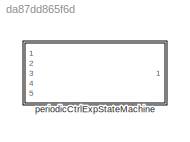
MODEL slx_da87dd865f6d
KIND library
CONFIG AbsTol = auto
CONFIG EnableMultiTasking = off
CONFIG FixedStep = auto
CONFIG MaxStep = auto
CONFIG MinStep = auto
CONFIG RelTol = 1e-3
CONFIG SampleTimeConstraint = Unconstrained
CONFIG SolverName = VariableStepAuto
CONFIG StartTime = 0.0
CONFIG StopTime = 10.0
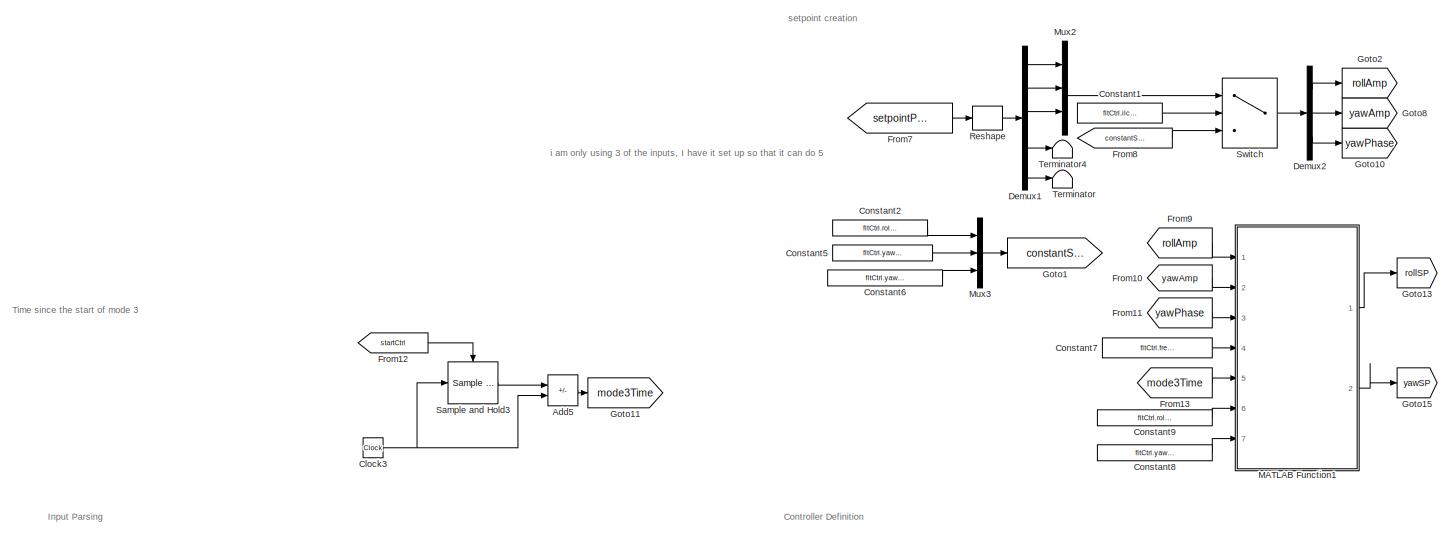
[diagram: periodicCtrlExpStateMachine - part 1/3, top left region]
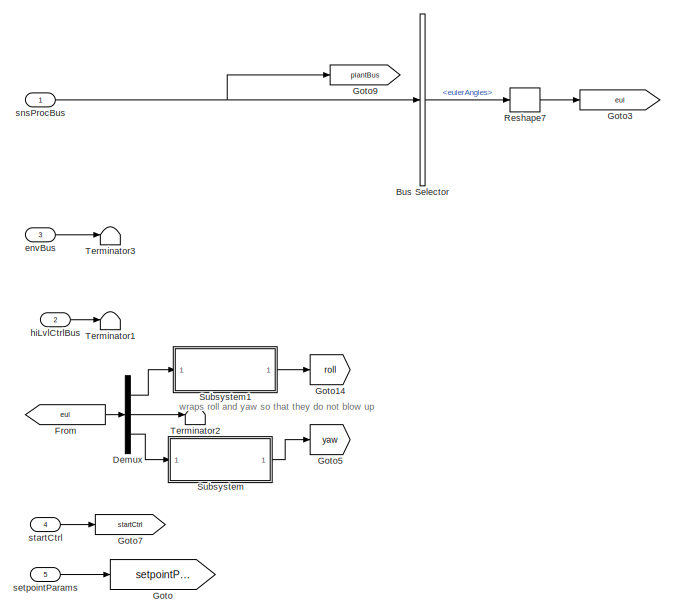
[diagram: periodicCtrlExpStateMachine - part 2/3, bottom left region]
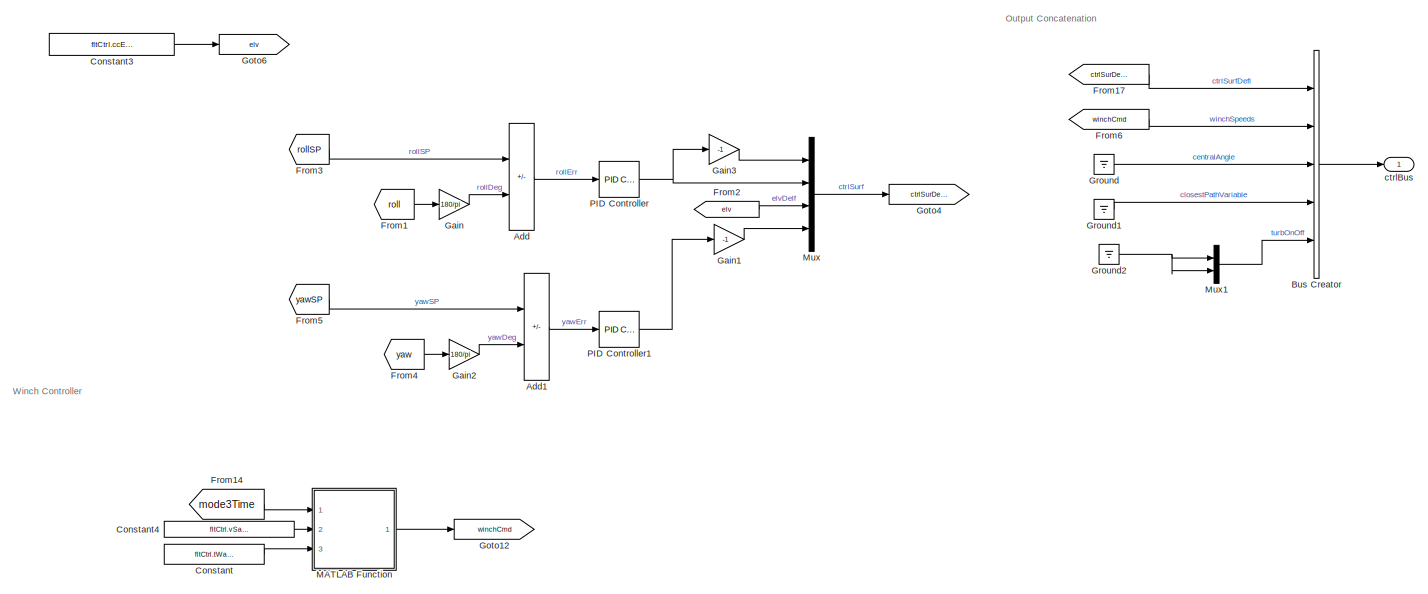
[diagram: periodicCtrlExpStateMachine - part 3/3, bottom right region]
BLOCK [SubSystem] periodicCtrlExpStateMachine
  InitFcn = initializeBussesFromBlock(gcb)
  LoadFcn = initializeBussesFromBlock(gcb)
  Ports = [5, 1]
  RequestExecContextInheritance = off
BLOCK [Sum] periodicCtrlExpStateMachine/Add
  IconShape = rectangular
  Inputs = +-
  Ports = [2, 1]
BLOCK [Sum] periodicCtrlExpStateMachine/Add1
  IconShape = rectangular
  Inputs = +-
  Ports = [2, 1]
BLOCK [Sum] periodicCtrlExpStateMachine/Add5
  IconShape = rectangular
  Inputs = -+
  Ports = [2, 1]
BLOCK [BusCreator] periodicCtrlExpStateMachine/Bus Creator
  DisplayOption = bar
  InheritFromInputs = off
  Inputs = 5
  OutDataTypeStr = Bus: fltCtrlBus
  Ports = [5, 1]
BLOCK [BusSelector] periodicCtrlExpStateMachine/Bus Selector
  OutputSignals = eulerAngles
  Ports = [1, 1]
BLOCK [Clock] periodicCtrlExpStateMachine/Clock3
BLOCK [Constant] periodicCtrlExpStateMachine/Constant
  Value = fltCtrl.tWait.Value
BLOCK [Constant] periodicCtrlExpStateMachine/Constant1
  Value = fltCtrl.ilcTrig.Value
BLOCK [Constant] periodicCtrlExpStateMachine/Constant2
  Value = fltCtrl.rollAmp.Value
BLOCK [Constant] periodicCtrlExpStateMachine/Constant3
  Value = fltCtrl.ccElevator.Value
BLOCK [Constant] periodicCtrlExpStateMachine/Constant4
  Value = fltCtrl.vSat.Value
BLOCK [Constant] periodicCtrlExpStateMachine/Constant5
  Value = fltCtrl.yawAmp.Value
BLOCK [Constant] periodicCtrlExpStateMachine/Constant6
  Value = fltCtrl.yawPhase.Value
BLOCK [Constant] periodicCtrlExpStateMachine/Constant7
  Value = fltCtrl.frequency.Value
BLOCK [Constant] periodicCtrlExpStateMachine/Constant8
  Value = fltCtrl.yawBias.Value
BLOCK [Constant] periodicCtrlExpStateMachine/Constant9
  Value = fltCtrl.rollBias.Value
BLOCK [Demux] periodicCtrlExpStateMachine/Demux
  Outputs = 3
  Ports = [1, 3]
BLOCK [Demux] periodicCtrlExpStateMachine/Demux1
  Outputs = 5
  Ports = [1, 5]
BLOCK [Demux] periodicCtrlExpStateMachine/Demux2
  Outputs = 3
  Ports = [1, 3]
BLOCK [From] periodicCtrlExpStateMachine/From
  GotoTag = eul
BLOCK [From] periodicCtrlExpStateMachine/From1
  GotoTag = roll
BLOCK [From] periodicCtrlExpStateMachine/From10
  GotoTag = yawAmp
BLOCK [From] periodicCtrlExpStateMachine/From11
  GotoTag = yawPhase
BLOCK [From] periodicCtrlExpStateMachine/From12
  GotoTag = startCtrl
BLOCK [From] periodicCtrlExpStateMachine/From13
  GotoTag = mode3Time
BLOCK [From] periodicCtrlExpStateMachine/From14
  GotoTag = mode3Time
BLOCK [From] periodicCtrlExpStateMachine/From17
  GotoTag = ctrlSurDefl
BLOCK [From] periodicCtrlExpStateMachine/From2
  GotoTag = elv
BLOCK [From] periodicCtrlExpStateMachine/From3
  GotoTag = rollSP
BLOCK [From] periodicCtrlExpStateMachine/From4
  GotoTag = yaw
BLOCK [From] periodicCtrlExpStateMachine/From5
  GotoTag = yawSP
BLOCK [From] periodicCtrlExpStateMachine/From6
  GotoTag = winchCmd
BLOCK [From] periodicCtrlExpStateMachine/From7
  GotoTag = setpointParams
BLOCK [From] periodicCtrlExpStateMachine/From8
  GotoTag = constantSetpoints
BLOCK [From] periodicCtrlExpStateMachine/From9
  GotoTag = rollAmp
BLOCK [Gain] periodicCtrlExpStateMachine/Gain
  Gain = 180/pi
BLOCK [Gain] periodicCtrlExpStateMachine/Gain1
  Gain = -1
BLOCK [Gain] periodicCtrlExpStateMachine/Gain2
  Gain = 180/pi
BLOCK [Gain] periodicCtrlExpStateMachine/Gain3
  Gain = -1
BLOCK [Goto] periodicCtrlExpStateMachine/Goto
  GotoTag = setpointParams
BLOCK [Goto] periodicCtrlExpStateMachine/Goto1
  GotoTag = constantSetpoints
BLOCK [Goto] periodicCtrlExpStateMachine/Goto10
  GotoTag = yawPhase
BLOCK [Goto] periodicCtrlExpStateMachine/Goto11
  GotoTag = mode3Time
BLOCK [Goto] periodicCtrlExpStateMachine/Goto12
  GotoTag = winchCmd
BLOCK [Goto] periodicCtrlExpStateMachine/Goto13
  GotoTag = rollSP
BLOCK [Goto] periodicCtrlExpStateMachine/Goto14
  GotoTag = roll
BLOCK [Goto] periodicCtrlExpStateMachine/Goto15
  GotoTag = yawSP
BLOCK [Goto] periodicCtrlExpStateMachine/Goto2
  GotoTag = rollAmp
BLOCK [Goto] periodicCtrlExpStateMachine/Goto3
  GotoTag = eul
BLOCK [Goto] periodicCtrlExpStateMachine/Goto4
  GotoTag = ctrlSurDefl
BLOCK [Goto] periodicCtrlExpStateMachine/Goto5
  GotoTag = yaw
BLOCK [Goto] periodicCtrlExpStateMachine/Goto6
  GotoTag = elv
BLOCK [Goto] periodicCtrlExpStateMachine/Goto7
  GotoTag = startCtrl
BLOCK [Goto] periodicCtrlExpStateMachine/Goto8
  GotoTag = yawAmp
BLOCK [Goto] periodicCtrlExpStateMachine/Goto9
  GotoTag = plantBus
BLOCK [Ground] periodicCtrlExpStateMachine/Ground
BLOCK [Ground] periodicCtrlExpStateMachine/Ground1
BLOCK [Ground] periodicCtrlExpStateMachine/Ground2
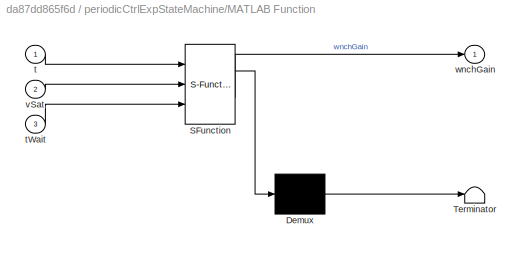
BLOCK [SubSystem] periodicCtrlExpStateMachine/MATLAB Function
  ErrorFcn = Stateflow.Translate.translate
  PermitHierarchicalResolution = ExplicitOnly
  Ports = [3, 1]
  RequestExecContextInheritance = off
  SFBlockType = MATLAB Function
  TreatAsAtomicUnit = on
BLOCK [Demux] periodicCtrlExpStateMachine/MATLAB Function/ Demux 
  Outputs = 1
  Ports = [1, 1]
BLOCK [S-Function] periodicCtrlExpStateMachine/MATLAB Function/ SFunction 
  EnableBusSupport = off
  FunctionName = sf_sfun
  PortCounts = [3 2]
  Ports = [3, 2]
  SFcnIsStateOwnerBlock = off
  SFunctionDeploymentMode = off
  Tag = Stateflow S-Function 25
BLOCK [Terminator] periodicCtrlExpStateMachine/MATLAB Function/ Terminator 
BLOCK [Inport] periodicCtrlExpStateMachine/MATLAB Function/t
BLOCK [Inport] periodicCtrlExpStateMachine/MATLAB Function/tWait
  Port = 3
BLOCK [Inport] periodicCtrlExpStateMachine/MATLAB Function/vSat
  Port = 2
BLOCK [Outport] periodicCtrlExpStateMachine/MATLAB Function/wnchGain
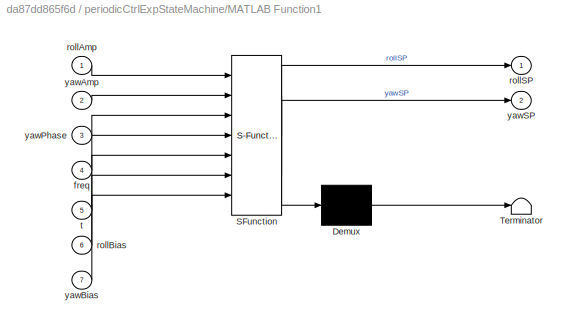
BLOCK [SubSystem] periodicCtrlExpStateMachine/MATLAB Function1
  ErrorFcn = Stateflow.Translate.translate
  PermitHierarchicalResolution = ExplicitOnly
  Ports = [7, 2]
  RequestExecContextInheritance = off
  SFBlockType = MATLAB Function
  TreatAsAtomicUnit = on
BLOCK [Demux] periodicCtrlExpStateMachine/MATLAB Function1/ Demux 
  Outputs = 1
  Ports = [1, 1]
BLOCK [S-Function] periodicCtrlExpStateMachine/MATLAB Function1/ SFunction 
  EnableBusSupport = off
  FunctionName = sf_sfun
  PortCounts = [7 3]
  Ports = [7, 3]
  SFcnIsStateOwnerBlock = off
  SFunctionDeploymentMode = off
  Tag = Stateflow S-Function 26
BLOCK [Terminator] periodicCtrlExpStateMachine/MATLAB Function1/ Terminator 
BLOCK [Inport] periodicCtrlExpStateMachine/MATLAB Function1/freq
  Port = 4
BLOCK [Inport] periodicCtrlExpStateMachine/MATLAB Function1/rollAmp
BLOCK [Inport] periodicCtrlExpStateMachine/MATLAB Function1/rollBias
  Port = 6
BLOCK [Outport] periodicCtrlExpStateMachine/MATLAB Function1/rollSP
BLOCK [Inport] periodicCtrlExpStateMachine/MATLAB Function1/t
  Port = 5
BLOCK [Inport] periodicCtrlExpStateMachine/MATLAB Function1/yawAmp
  Port = 2
BLOCK [Inport] periodicCtrlExpStateMachine/MATLAB Function1/yawBias
  Port = 7
BLOCK [Inport] periodicCtrlExpStateMachine/MATLAB Function1/yawPhase
  Port = 3
BLOCK [Outport] periodicCtrlExpStateMachine/MATLAB Function1/yawSP
  Port = 2
BLOCK [Mux] periodicCtrlExpStateMachine/Mux
  DisplayOption = bar
  Ports = [4, 1]
BLOCK [Mux] periodicCtrlExpStateMachine/Mux1
  DisplayOption = bar
  Inputs = 2
  Ports = [2, 1]
BLOCK [Mux] periodicCtrlExpStateMachine/Mux2
  DisplayOption = bar
  Inputs = 3
  Ports = [3, 1]
BLOCK [Mux] periodicCtrlExpStateMachine/Mux3
  DisplayOption = bar
  Inputs = 3
  Ports = [3, 1]
BLOCK [Reference] periodicCtrlExpStateMachine/PID Controller  REF=slpidlib/PID Controller
  Ports = [1, 1]
  SourceBlock = slpidlib/PID Controller
  SourceProductBaseCode = SL
  SourceType = PID 1dof
BLOCK [Reference] periodicCtrlExpStateMachine/PID Controller1  REF=slpidlib/PID Controller
  Ports = [1, 1]
  SourceBlock = slpidlib/PID Controller
  SourceProductBaseCode = SL
  SourceType = PID 1dof
BLOCK [Reshape] periodicCtrlExpStateMachine/Reshape
  OutputDimensionality = Column vector (2-D)
  Ports = [1, 1]
BLOCK [Reshape] periodicCtrlExpStateMachine/Reshape7
  OutputDimensionality = Column vector (2-D)
  Ports = [1, 1]
BLOCK [Reference] periodicCtrlExpStateMachine/Sample and Hold3  REF=dspsigops/Sample
and Hold
  Ports = [1, 1, 0, 1]
  SourceBlock = dspsigops/Sample\nand Hold
  SourceProductBaseCode = DS
  SourceType = Sample and Hold
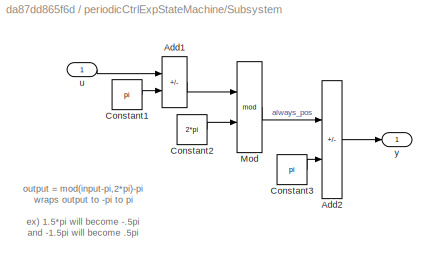
BLOCK [SubSystem] periodicCtrlExpStateMachine/Subsystem
  Ports = [1, 1]
  RequestExecContextInheritance = off
BLOCK [Sum] periodicCtrlExpStateMachine/Subsystem/Add1
  IconShape = rectangular
  Inputs = +-
  Ports = [2, 1]
BLOCK [Sum] periodicCtrlExpStateMachine/Subsystem/Add2
  IconShape = rectangular
  Inputs = +-
  Ports = [2, 1]
BLOCK [Constant] periodicCtrlExpStateMachine/Subsystem/Constant1
  Value = pi
BLOCK [Constant] periodicCtrlExpStateMachine/Subsystem/Constant2
  Value = 2*pi
BLOCK [Constant] periodicCtrlExpStateMachine/Subsystem/Constant3
  Value = pi
BLOCK [Math] periodicCtrlExpStateMachine/Subsystem/Mod
  Operator = mod
  Ports = [2, 1]
  SignedPower = on
BLOCK [Inport] periodicCtrlExpStateMachine/Subsystem/u
BLOCK [Outport] periodicCtrlExpStateMachine/Subsystem/y
  VectorParamsAs1DForOutWhenUnconnected = off
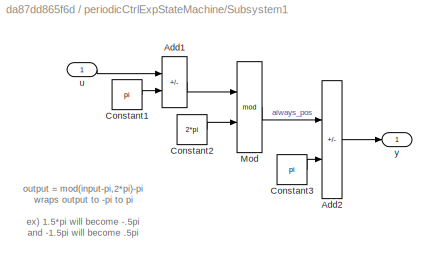
BLOCK [SubSystem] periodicCtrlExpStateMachine/Subsystem1
  AncestorBlock = periodicCtrlExpStateMachine/periodicCtrlExpStateMachine/Subsystem
  Ports = [1, 1]
  RequestExecContextInheritance = off
BLOCK [Sum] periodicCtrlExpStateMachine/Subsystem1/Add1
  IconShape = rectangular
  Inputs = +-
  Ports = [2, 1]
BLOCK [Sum] periodicCtrlExpStateMachine/Subsystem1/Add2
  IconShape = rectangular
  Inputs = +-
  Ports = [2, 1]
BLOCK [Constant] periodicCtrlExpStateMachine/Subsystem1/Constant1
  Value = pi
BLOCK [Constant] periodicCtrlExpStateMachine/Subsystem1/Constant2
  Value = 2*pi
BLOCK [Constant] periodicCtrlExpStateMachine/Subsystem1/Constant3
  Value = pi
BLOCK [Math] periodicCtrlExpStateMachine/Subsystem1/Mod
  Operator = mod
  Ports = [2, 1]
  SignedPower = on
BLOCK [Inport] periodicCtrlExpStateMachine/Subsystem1/u
BLOCK [Outport] periodicCtrlExpStateMachine/Subsystem1/y
  VectorParamsAs1DForOutWhenUnconnected = off
BLOCK [Switch] periodicCtrlExpStateMachine/Switch
  Criteria = u2 > Threshold
  InputSameDT = off
  SaturateOnIntegerOverflow = off
BLOCK [Terminator] periodicCtrlExpStateMachine/Terminator
BLOCK [Terminator] periodicCtrlExpStateMachine/Terminator1
BLOCK [Terminator] periodicCtrlExpStateMachine/Terminator2
BLOCK [Terminator] periodicCtrlExpStateMachine/Terminator3
BLOCK [Terminator] periodicCtrlExpStateMachine/Terminator4
BLOCK [Outport] periodicCtrlExpStateMachine/ctrlBus
  OutDataTypeStr = Bus: fltCtrlBus
  VectorParamsAs1DForOutWhenUnconnected = off
BLOCK [Inport] periodicCtrlExpStateMachine/envBus
  OutDataTypeStr = Bus: envBus
  Port = 3
BLOCK [Inport] periodicCtrlExpStateMachine/hiLvlCtrlBus
  OutDataTypeStr = Bus: hiLvlCtrlBus
  Port = 2
BLOCK [Inport] periodicCtrlExpStateMachine/setpointParams
  Port = 5
BLOCK [Inport] periodicCtrlExpStateMachine/snsProcBus
  OutDataTypeStr = Bus: sensorsProcessingBus
BLOCK [Inport] periodicCtrlExpStateMachine/startCtrl
  Port = 4
ANNOTATION periodicCtrlExpStateMachine: Controller Definition
ANNOTATION periodicCtrlExpStateMachine: Input Parsing
ANNOTATION periodicCtrlExpStateMachine: Output Concatenation
ANNOTATION periodicCtrlExpStateMachine: Time since the start of mode 3
ANNOTATION periodicCtrlExpStateMachine: Winch Controller
ANNOTATION periodicCtrlExpStateMachine: i am only using 3 of the inputs, I have it set up so that it can do 5
ANNOTATION periodicCtrlExpStateMachine: setpoint creation
ANNOTATION periodicCtrlExpStateMachine: wraps roll and yaw so that they do not blow up
ANNOTATION periodicCtrlExpStateMachine/Subsystem: output = mod(input-pi,2*pi)-pi wraps output to -pi to pi ex) 1.5*pi will become -.5pi and -1.5pi will become .5pi to visualize, plot the fuction above
ANNOTATION periodicCtrlExpStateMachine/Subsystem1: output = mod(input-pi,2*pi)-pi wraps output to -pi to pi ex) 1.5*pi will become -.5pi and -1.5pi will become .5pi to visualize, plot the fuction above
LINE periodicCtrlExpStateMachine/Add1:1 -> periodicCtrlExpStateMachine/PID Controller1:1
LINE periodicCtrlExpStateMachine/Add5:1 -> periodicCtrlExpStateMachine/Goto11:1
LINE periodicCtrlExpStateMachine/Add:1 -> periodicCtrlExpStateMachine/PID Controller:1
LINE periodicCtrlExpStateMachine/Bus Creator:1 -> periodicCtrlExpStateMachine/ctrlBus:1
LINE periodicCtrlExpStateMachine/Bus Selector:1 -> periodicCtrlExpStateMachine/Reshape7:1
NET periodicCtrlExpStateMachine/Clock3:1 -> periodicCtrlExpStateMachine/Add5:2, periodicCtrlExpStateMachine/Sample and Hold3:1
LINE periodicCtrlExpStateMachine/Constant1:1 -> periodicCtrlExpStateMachine/Switch:2
LINE periodicCtrlExpStateMachine/Constant2:1 -> periodicCtrlExpStateMachine/Mux3:1
LINE periodicCtrlExpStateMachine/Constant3:1 -> periodicCtrlExpStateMachine/Goto6:1
LINE periodicCtrlExpStateMachine/Constant4:1 -> periodicCtrlExpStateMachine/MATLAB Function:2
LINE periodicCtrlExpStateMachine/Constant5:1 -> periodicCtrlExpStateMachine/Mux3:2
LINE periodicCtrlExpStateMachine/Constant6:1 -> periodicCtrlExpStateMachine/Mux3:3
LINE periodicCtrlExpStateMachine/Constant7:1 -> periodicCtrlExpStateMachine/MATLAB Function1:4
LINE periodicCtrlExpStateMachine/Constant8:1 -> periodicCtrlExpStateMachine/MATLAB Function1:7
LINE periodicCtrlExpStateMachine/Constant9:1 -> periodicCtrlExpStateMachine/MATLAB Function1:6
LINE periodicCtrlExpStateMachine/Constant:1 -> periodicCtrlExpStateMachine/MATLAB Function:3
LINE periodicCtrlExpStateMachine/Demux1:1 -> periodicCtrlExpStateMachine/Mux2:1
LINE periodicCtrlExpStateMachine/Demux1:2 -> periodicCtrlExpStateMachine/Mux2:2
LINE periodicCtrlExpStateMachine/Demux1:3 -> periodicCtrlExpStateMachine/Mux2:3
LINE periodicCtrlExpStateMachine/Demux1:4 -> periodicCtrlExpStateMachine/Terminator4:1
LINE periodicCtrlExpStateMachine/Demux1:5 -> periodicCtrlExpStateMachine/Terminator:1
LINE periodicCtrlExpStateMachine/Demux2:1 -> periodicCtrlExpStateMachine/Goto2:1
LINE periodicCtrlExpStateMachine/Demux2:2 -> periodicCtrlExpStateMachine/Goto8:1
LINE periodicCtrlExpStateMachine/Demux2:3 -> periodicCtrlExpStateMachine/Goto10:1
LINE periodicCtrlExpStateMachine/Demux:1 -> periodicCtrlExpStateMachine/Subsystem1:1
LINE periodicCtrlExpStateMachine/Demux:2 -> periodicCtrlExpStateMachine/Terminator2:1
LINE periodicCtrlExpStateMachine/Demux:3 -> periodicCtrlExpStateMachine/Subsystem:1
LINE periodicCtrlExpStateMachine/From10:1 -> periodicCtrlExpStateMachine/MATLAB Function1:2
LINE periodicCtrlExpStateMachine/From11:1 -> periodicCtrlExpStateMachine/MATLAB Function1:3
LINE periodicCtrlExpStateMachine/From12:1 -> periodicCtrlExpStateMachine/Sample and Hold3:trigger
LINE periodicCtrlExpStateMachine/From13:1 -> periodicCtrlExpStateMachine/MATLAB Function1:5
LINE periodicCtrlExpStateMachine/From14:1 -> periodicCtrlExpStateMachine/MATLAB Function:1
LINE periodicCtrlExpStateMachine/From17:1 -> periodicCtrlExpStateMachine/Bus Creator:1
LINE periodicCtrlExpStateMachine/From1:1 -> periodicCtrlExpStateMachine/Gain:1
LINE periodicCtrlExpStateMachine/From2:1 -> periodicCtrlExpStateMachine/Mux:3
LINE periodicCtrlExpStateMachine/From3:1 -> periodicCtrlExpStateMachine/Add:1
LINE periodicCtrlExpStateMachine/From4:1 -> periodicCtrlExpStateMachine/Gain2:1
LINE periodicCtrlExpStateMachine/From5:1 -> periodicCtrlExpStateMachine/Add1:1
LINE periodicCtrlExpStateMachine/From6:1 -> periodicCtrlExpStateMachine/Bus Creator:2
LINE periodicCtrlExpStateMachine/From7:1 -> periodicCtrlExpStateMachine/Reshape:1
LINE periodicCtrlExpStateMachine/From8:1 -> periodicCtrlExpStateMachine/Switch:3
LINE periodicCtrlExpStateMachine/From9:1 -> periodicCtrlExpStateMachine/MATLAB Function1:1
LINE periodicCtrlExpStateMachine/From:1 -> periodicCtrlExpStateMachine/Demux:1
LINE periodicCtrlExpStateMachine/Gain1:1 -> periodicCtrlExpStateMachine/Mux:4
LINE periodicCtrlExpStateMachine/Gain2:1 -> periodicCtrlExpStateMachine/Add1:2
LINE periodicCtrlExpStateMachine/Gain3:1 -> periodicCtrlExpStateMachine/Mux:1
LINE periodicCtrlExpStateMachine/Gain:1 -> periodicCtrlExpStateMachine/Add:2
LINE periodicCtrlExpStateMachine/Ground1:1 -> periodicCtrlExpStateMachine/Bus Creator:4
NET periodicCtrlExpStateMachine/Ground2:1 -> periodicCtrlExpStateMachine/Mux1:1, periodicCtrlExpStateMachine/Mux1:2
LINE periodicCtrlExpStateMachine/Ground:1 -> periodicCtrlExpStateMachine/Bus Creator:3
LINE periodicCtrlExpStateMachine/MATLAB Function1:1 -> periodicCtrlExpStateMachine/Goto13:1
LINE periodicCtrlExpStateMachine/MATLAB Function1:2 -> periodicCtrlExpStateMachine/Goto15:1
LINE periodicCtrlExpStateMachine/MATLAB Function:1 -> periodicCtrlExpStateMachine/Goto12:1
LINE periodicCtrlExpStateMachine/Mux1:1 -> periodicCtrlExpStateMachine/Bus Creator:5
LINE periodicCtrlExpStateMachine/Mux2:1 -> periodicCtrlExpStateMachine/Switch:1
LINE periodicCtrlExpStateMachine/Mux3:1 -> periodicCtrlExpStateMachine/Goto1:1
LINE periodicCtrlExpStateMachine/Mux:1 -> periodicCtrlExpStateMachine/Goto4:1
LINE periodicCtrlExpStateMachine/PID Controller1:1 -> periodicCtrlExpStateMachine/Gain1:1
NET periodicCtrlExpStateMachine/PID Controller:1 -> periodicCtrlExpStateMachine/Gain3:1, periodicCtrlExpStateMachine/Mux:2
LINE periodicCtrlExpStateMachine/Reshape7:1 -> periodicCtrlExpStateMachine/Goto3:1
LINE periodicCtrlExpStateMachine/Reshape:1 -> periodicCtrlExpStateMachine/Demux1:1
LINE periodicCtrlExpStateMachine/Sample and Hold3:1 -> periodicCtrlExpStateMachine/Add5:1
LINE periodicCtrlExpStateMachine/Subsystem/Add1:1 -> periodicCtrlExpStateMachine/Subsystem/Mod:1
LINE periodicCtrlExpStateMachine/Subsystem/Add2:1 -> periodicCtrlExpStateMachine/Subsystem/y:1
LINE periodicCtrlExpStateMachine/Subsystem/Constant1:1 -> periodicCtrlExpStateMachine/Subsystem/Add1:2
LINE periodicCtrlExpStateMachine/Subsystem/Constant2:1 -> periodicCtrlExpStateMachine/Subsystem/Mod:2
LINE periodicCtrlExpStateMachine/Subsystem/Constant3:1 -> periodicCtrlExpStateMachine/Subsystem/Add2:2
LINE periodicCtrlExpStateMachine/Subsystem/Mod:1 -> periodicCtrlExpStateMachine/Subsystem/Add2:1
LINE periodicCtrlExpStateMachine/Subsystem/u:1 -> periodicCtrlExpStateMachine/Subsystem/Add1:1
LINE periodicCtrlExpStateMachine/Subsystem1:1 -> periodicCtrlExpStateMachine/Goto14:1
LINE periodicCtrlExpStateMachine/Subsystem:1 -> periodicCtrlExpStateMachine/Goto5:1
LINE periodicCtrlExpStateMachine/Switch:1 -> periodicCtrlExpStateMachine/Demux2:1
LINE periodicCtrlExpStateMachine/envBus:1 -> periodicCtrlExpStateMachine/Terminator3:1
LINE periodicCtrlExpStateMachine/hiLvlCtrlBus:1 -> periodicCtrlExpStateMachine/Terminator1:1
LINE periodicCtrlExpStateMachine/setpointParams:1 -> periodicCtrlExpStateMachine/Goto:1
NET periodicCtrlExpStateMachine/snsProcBus:1 -> periodicCtrlExpStateMachine/Bus Selector:1, periodicCtrlExpStateMachine/Goto9:1
LINE periodicCtrlExpStateMachine/startCtrl:1 -> periodicCtrlExpStateMachine/Goto7:1
note: NET lines group one-source signal fan-out (src -> all destinations, sorted); 1:1 wires keep LINE
CHART periodicCtrlExpStateMachine/MATLAB Function states=1 transitions=1
  STATE_LABEL 'eML_blk_kernel()'
  STATE_LABEL 'SCRIPT:\nfunction wnchGain   = fcn(t,vSat,tWait)\nwnchGain = 0;\nif t< tWait\n    wnchGain = 0;\nelse\n    wnchGain = .5*(t-tWait)^2;\nend\n\nif wnchGain >= vSat\n    wnchGain = vSat;\nend'
CHART periodicCtrlExpStateMachine/MATLAB Function1 states=1 transitions=1
  STATE_LABEL 'eML_blk_kernel()'
  STATE_LABEL 'SCRIPT:\nfunction [rollSP,yawSP] = fcn(rollAmp,yawAmp,yawPhase,freq,t, rollBias, yawBias)\n\nrollSP = rollAmp*sin(freq*t)+rollBias;\nyawSP  = yawAmp*sin(freq*t+yawPhase)+yawBias;'
CHART  states=0 transitions=0
CHART  states=0 transitions=0
